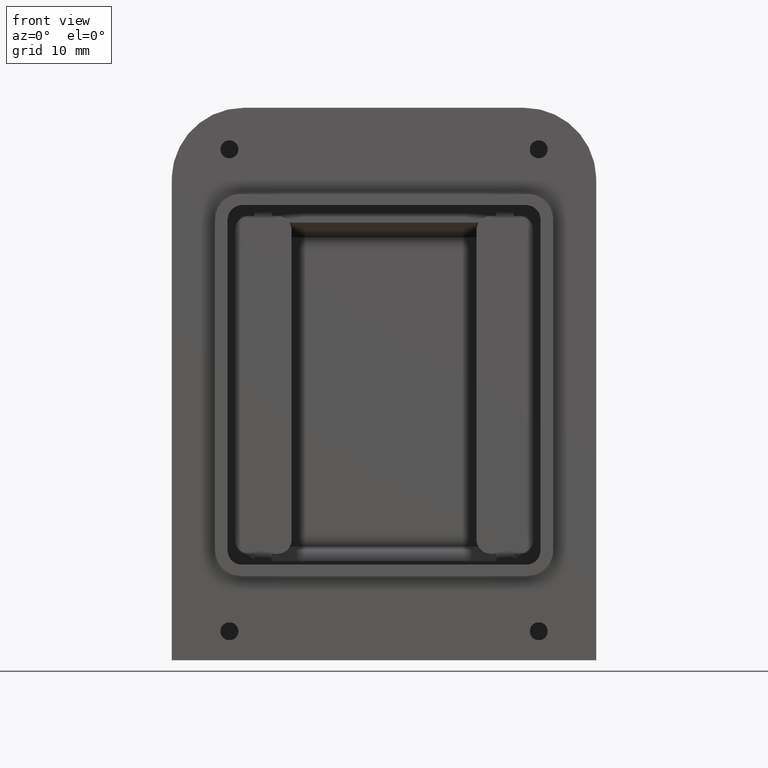
[diagram: clean part render]
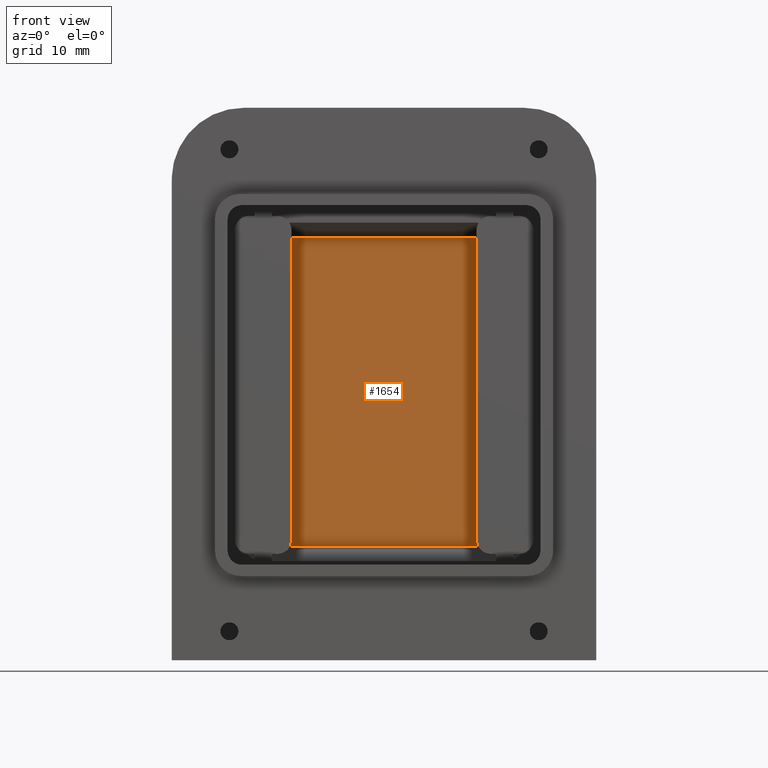
[diagram: same view with one face highlighted and labeled with its STEP entity id]
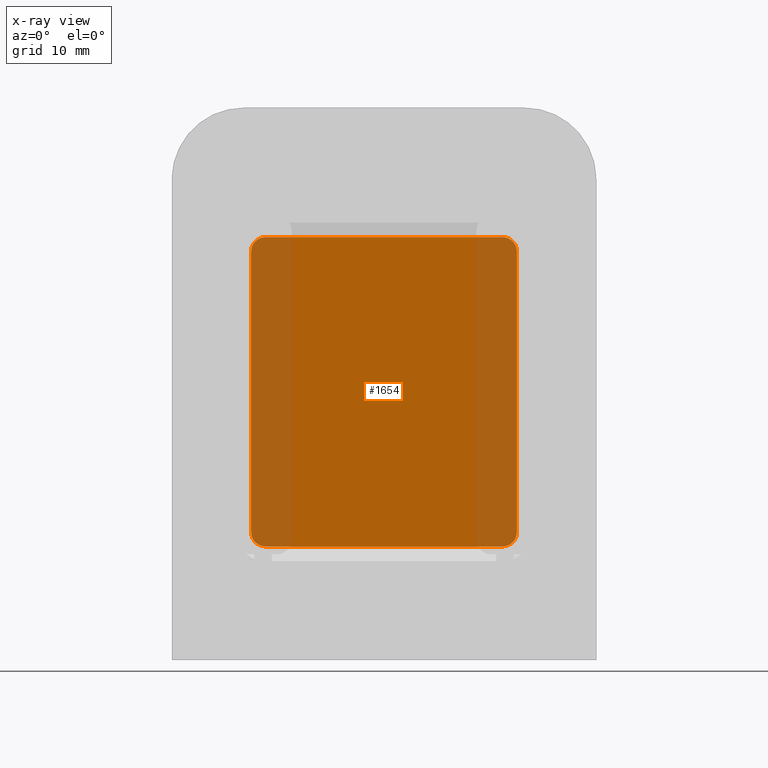
[diagram: x-ray of the same camera — body ghosted, the highlighted face saturated]
A machine part, front view. The second image highlights one B-rep face of the part: STEP entity #1654.
The next image is the same camera in x-ray: the body ghosted, the highlighted face saturated — about 30% of this face is hidden behind the body in this view.
In plain terms, the highlighted planar face has unit normal (0, 1, 0).
Its self-contained STEP definition (entity closure, byte-faithful):
#1567 = EDGE_CURVE ( 'NONE', #1638, #1568, #6197, .T. ) ;
#1568 = VERTEX_POINT ( 'NONE', #6193 ) ;
#1582 = VERTEX_POINT ( 'NONE', #6261 ) ;
#1603 = EDGE_CURVE ( 'NONE', #1621, #1604, #6319, .T. ) ;
#1604 = VERTEX_POINT ( 'NONE', #6315 ) ;
#1611 = EDGE_CURVE ( 'NONE', #1629, #1612, #6338, .T. ) ;
#1612 = VERTEX_POINT ( 'NONE', #6334 ) ;
#1620 = EDGE_CURVE ( 'NONE', #1612, #1621, #6362, .T. ) ;
#1621 = VERTEX_POINT ( 'NONE', #6357 ) ;
#1628 = EDGE_CURVE ( 'NONE', #1568, #1629, #6390, .T. ) ;
#1629 = VERTEX_POINT ( 'NONE', #6381 ) ;
#1637 = EDGE_CURVE ( 'NONE', #1582, #1638, #6414, .T. ) ;
#1638 = VERTEX_POINT ( 'NONE', #6463 ) ;
#1654 = ADVANCED_FACE ( 'NONE', ( #6482 ), #6522, .F. ) ;
#1655 = EDGE_LOOP ( 'NONE', ( #1656, #1657, #1658, #1659, #1660, #1661, #1662, #1663 ) ) ;
#1656 = ORIENTED_EDGE ( 'NONE', *, *, #1637, .F. ) ;
#1657 = ORIENTED_EDGE ( 'NONE', *, *, #1675, .F. ) ;
#1658 = ORIENTED_EDGE ( 'NONE', *, *, #1666, .F. ) ;
#1659 = ORIENTED_EDGE ( 'NONE', *, *, #1603, .F. ) ;
#1660 = ORIENTED_EDGE ( 'NONE', *, *, #1620, .F. ) ;
#1661 = ORIENTED_EDGE ( 'NONE', *, *, #1611, .F. ) ;
#1662 = ORIENTED_EDGE ( 'NONE', *, *, #1628, .F. ) ;
#1663 = ORIENTED_EDGE ( 'NONE', *, *, #1567, .F. ) ;
#1666 = EDGE_CURVE ( 'NONE', #1604, #1667, #6517, .T. ) ;
#1667 = VERTEX_POINT ( 'NONE', #6513 ) ;
#1675 = EDGE_CURVE ( 'NONE', #1667, #1582, #6546, .T. ) ;
#6193 = CARTESIAN_POINT ( 'NONE',  ( -16.49999999999999300, 22.50000000000000000, -22.45038615843784800 ) ) ;
#6194 = DIRECTION ( 'NONE',  ( -1.000000000000000000, 0.0000000000000000000, -0.0000000000000000000 ) ) ;
#6195 = VECTOR ( 'NONE', #6194, 1000.000000000000000 ) ;
#6196 = CARTESIAN_POINT ( 'NONE',  ( 16.49999999999997900, 22.50000000000000000, -22.45038615843784800 ) ) ;
#6197 = LINE ( 'NONE', #6196, #6195 ) ;
#6261 = CARTESIAN_POINT ( 'NONE',  ( 18.47223972185265600, 22.50000000000000000, -20.47814643658518800 ) ) ;
#6315 = CARTESIAN_POINT ( 'NONE',  ( 16.49999999999998600, 22.50000000000000000, 20.55038615843784900 ) ) ;
#6316 = DIRECTION ( 'NONE',  ( 1.000000000000000000, -0.0000000000000000000, -0.0000000000000000000 ) ) ;
#6317 = VECTOR ( 'NONE', #6316, 1000.000000000000000 ) ;
#6318 = CARTESIAN_POINT ( 'NONE',  ( 16.49999999999997200, 22.50000000000000000, 20.55038615843784900 ) ) ;
#6319 = LINE ( 'NONE', #6318, #6317 ) ;
#6334 = CARTESIAN_POINT ( 'NONE',  ( -18.47223972185264900, 22.50000000000000000, 18.57814643658519000 ) ) ;
#6335 = DIRECTION ( 'NONE',  ( 1.776639151708607400E-016, -0.0000000000000000000, 1.000000000000000000 ) ) ;
#6336 = VECTOR ( 'NONE', #6335, 1000.000000000000000 ) ;
#6337 = CARTESIAN_POINT ( 'NONE',  ( -18.47223972185264900, 22.50000000000000000, 18.57814643658517500 ) ) ;
#6338 = LINE ( 'NONE', #6337, #6336 ) ;
#6353 = DIRECTION ( 'NONE',  ( 0.0000000000000000000, 0.0000000000000000000, 1.000000000000000000 ) ) ;
#6354 = DIRECTION ( 'NONE',  ( 0.0000000000000000000, 1.000000000000000000, 0.0000000000000000000 ) ) ;
#6355 = CARTESIAN_POINT ( 'NONE',  ( -16.50000000000000000, 22.50000000000000000, 18.57814643658520400 ) ) ;
#6356 = AXIS2_PLACEMENT_3D ( 'NONE', #6355, #6354, #6353 ) ;
#6357 = CARTESIAN_POINT ( 'NONE',  ( -16.49999999999997200, 22.50000000000000000, 20.55038615843784900 ) ) ;
#6362 = CIRCLE ( 'NONE', #6356, 1.972239721852647700 ) ;
#6381 = CARTESIAN_POINT ( 'NONE',  ( -18.47223972185265600, 22.50000000000000000, -20.47814643658517400 ) ) ;
#6382 = DIRECTION ( 'NONE',  ( 0.0000000000000000000, 0.0000000000000000000, 1.000000000000000000 ) ) ;
#6383 = DIRECTION ( 'NONE',  ( 0.0000000000000000000, 1.000000000000000000, 0.0000000000000000000 ) ) ;
#6384 = CARTESIAN_POINT ( 'NONE',  ( -16.50000000000000700, 22.50000000000000000, -20.47814643658520200 ) ) ;
#6385 = AXIS2_PLACEMENT_3D ( 'NONE', #6384, #6383, #6382 ) ;
#6390 = CIRCLE ( 'NONE', #6385, 1.972239721852647700 ) ;
#6408 = CARTESIAN_POINT ( 'NONE',  ( 16.50000000000000700, 22.50000000000000000, -20.47814643658520200 ) ) ;
#6409 = AXIS2_PLACEMENT_3D ( 'NONE', #6408, #6465, #6464 ) ;
#6414 = CIRCLE ( 'NONE', #6409, 1.972239721852647700 ) ;
#6463 = CARTESIAN_POINT ( 'NONE',  ( 16.49999999999997900, 22.50000000000000000, -22.45038615843784800 ) ) ;
#6464 = DIRECTION ( 'NONE',  ( 0.0000000000000000000, 0.0000000000000000000, 1.000000000000000000 ) ) ;
#6465 = DIRECTION ( 'NONE',  ( 0.0000000000000000000, 1.000000000000000000, 0.0000000000000000000 ) ) ;
#6482 = FACE_OUTER_BOUND ( 'NONE', #1655, .T. ) ;
#6513 = CARTESIAN_POINT ( 'NONE',  ( 18.47223972185264900, 22.50000000000000000, 18.57814643658517500 ) ) ;
#6514 = DIRECTION ( 'NONE',  ( 0.0000000000000000000, 0.0000000000000000000, 1.000000000000000000 ) ) ;
#6515 = DIRECTION ( 'NONE',  ( 0.0000000000000000000, 1.000000000000000000, 0.0000000000000000000 ) ) ;
#6516 = AXIS2_PLACEMENT_3D ( 'NONE', #6523, #6515, #6514 ) ;
#6517 = CIRCLE ( 'NONE', #6516, 1.972239721852647700 ) ;
#6518 = DIRECTION ( 'NONE',  ( 0.0000000000000000000, -0.0000000000000000000, 1.000000000000000000 ) ) ;
#6519 = DIRECTION ( 'NONE',  ( 0.0000000000000000000, 1.000000000000000000, 0.0000000000000000000 ) ) ;
#6520 = CARTESIAN_POINT ( 'NONE',  ( 16.50000000000000700, 22.50000000000000000, -20.47814643658520200 ) ) ;
#6521 = AXIS2_PLACEMENT_3D ( 'NONE', #6520, #6519, #6518 ) ;
#6522 = PLANE ( 'NONE',  #6521 ) ;
#6523 = CARTESIAN_POINT ( 'NONE',  ( 16.50000000000000000, 22.50000000000000000, 18.57814643658520400 ) ) ;
#6543 = DIRECTION ( 'NONE',  ( 1.776639151708607400E-016, -0.0000000000000000000, -1.000000000000000000 ) ) ;
#6544 = VECTOR ( 'NONE', #6543, 1000.000000000000000 ) ;
#6545 = CARTESIAN_POINT ( 'NONE',  ( 18.47223972185264900, 22.50000000000000000, 18.57814643658517500 ) ) ;
#6546 = LINE ( 'NONE', #6545, #6544 ) ;